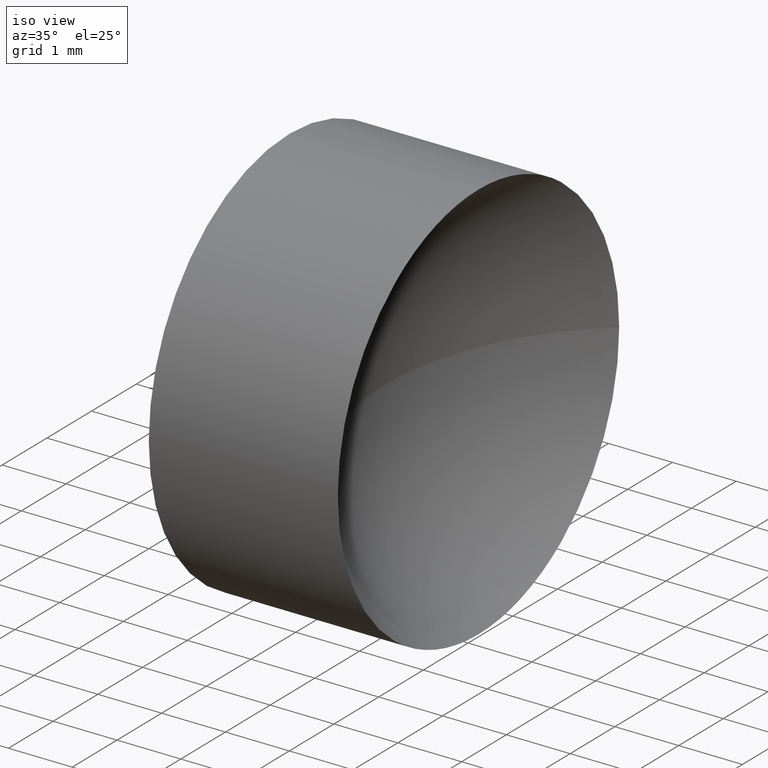
[diagram: clean part render]
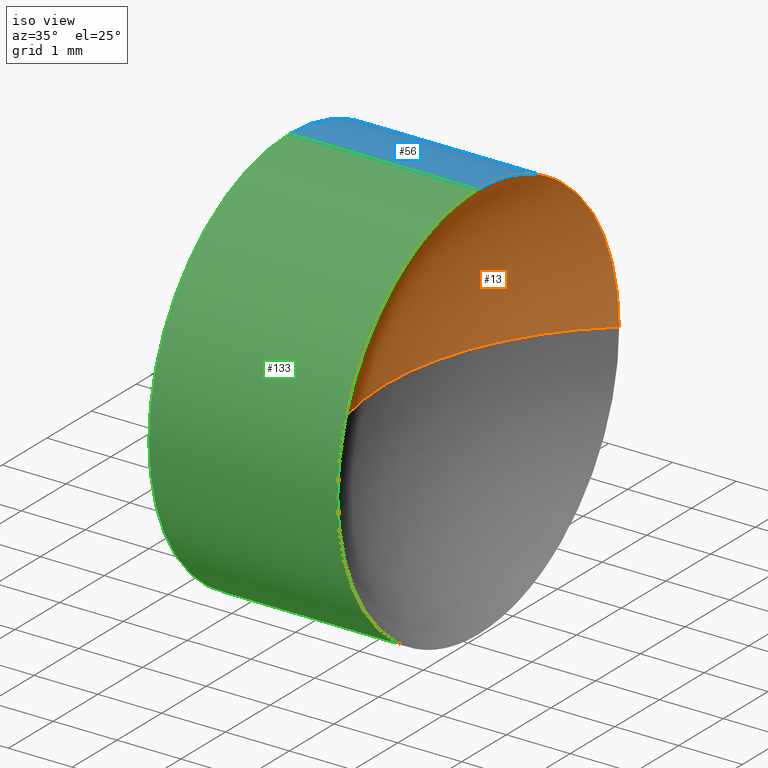
[diagram: same view with three faces highlighted in distinct colors, each labeled with its STEP entity id]
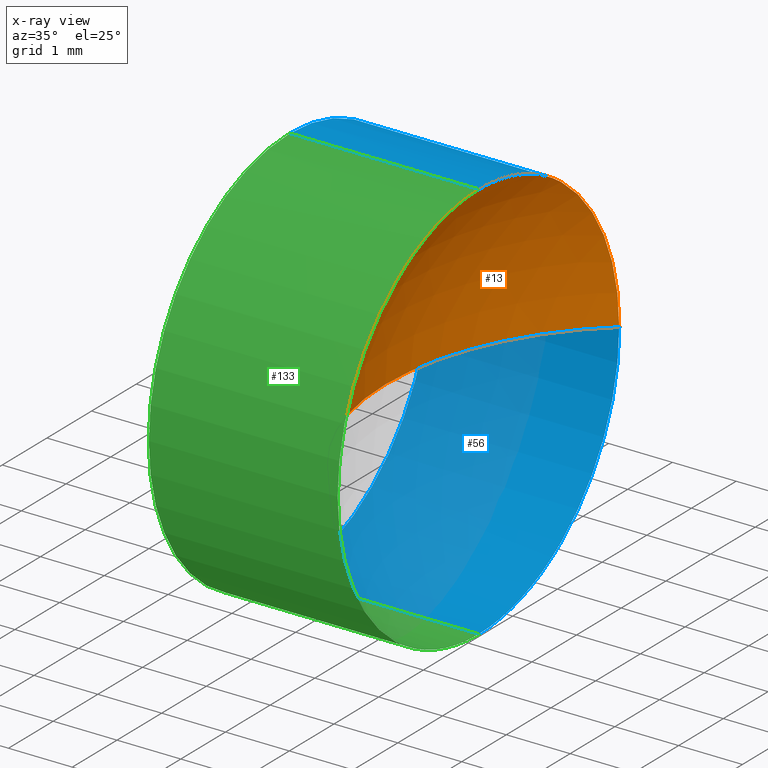
[diagram: x-ray of the same camera — body ghosted, the three highlighted faces saturated]
A machine part, iso view with three faces highlighted in distinct colors.
The next image is the same camera in x-ray (body ghosted, the three faces saturated) — at least one of them is partly hidden behind the body in this view.
Their STEP definitions:

[orange] entity #13 — the highlighted spherical surface has radius 4.1281 mm.
#12 = FACE_OUTER_BOUND ( 'NONE', #64, .T. ) ;
#13 = ADVANCED_FACE ( 'NONE', ( #12 ), #118, .F. ) ;
#14 = DIRECTION ( 'NONE',  ( 0.0000000000000000000, -1.000000000000000000, -1.224646799147353000E-016 ) ) ;
#24 = CIRCLE ( 'NONE', #79, 3.150000000000001700 ) ;
#25 = DIRECTION ( 'NONE',  ( 0.0000000000000000000, 0.0000000000000000000, -1.000000000000000000 ) ) ;
#26 = CARTESIAN_POINT ( 'NONE',  ( 27.80030591355844600, 13.04452057459747900, 0.0000000000000000000 ) ) ;
#30 = CARTESIAN_POINT ( 'NONE',  ( 25.13218947520227800, 13.04452057459747900, 0.0000000000000000000 ) ) ;
#31 = DIRECTION ( 'NONE',  ( 0.0000000000000000000, 0.0000000000000000000, 1.000000000000000000 ) ) ;
#33 = ORIENTED_EDGE ( 'NONE', *, *, #53, .F. ) ;
#36 = CIRCLE ( 'NONE', #89, 3.150000000000001700 ) ;
#43 = DIRECTION ( 'NONE',  ( -1.000000000000000000, 0.0000000000000000000, 0.0000000000000000000 ) ) ;
#44 = DIRECTION ( 'NONE',  ( 0.0000000000000000000, 0.0000000000000000000, 1.000000000000000000 ) ) ;
#47 = VERTEX_POINT ( 'NONE', #69 ) ;
#53 = EDGE_CURVE ( 'NONE', #130, #55, #179, .T. ) ;
#55 = VERTEX_POINT ( 'NONE', #138 ) ;
#59 = DIRECTION ( 'NONE',  ( 0.0000000000000000000, 0.0000000000000000000, 1.000000000000000000 ) ) ;
#63 = DIRECTION ( 'NONE',  ( -1.000000000000000000, -0.0000000000000000000, -0.0000000000000000000 ) ) ;
#64 = EDGE_LOOP ( 'NONE', ( #33, #81, #149, #161 ) ) ;
#66 = EDGE_CURVE ( 'NONE', #47, #55, #162, .T. ) ;
#69 = CARTESIAN_POINT ( 'NONE',  ( 25.13218947520227800, 9.894520574597477100, 0.0000000000000000000 ) ) ;
#70 = DIRECTION ( 'NONE',  ( 0.0000000000000000000, -1.224646799147353200E-016, 1.000000000000000000 ) ) ;
#73 = CARTESIAN_POINT ( 'NONE',  ( 25.13218947520227800, 13.04452057459747900, 3.150000000000001700 ) ) ;
#79 = AXIS2_PLACEMENT_3D ( 'NONE', #143, #101, #59 ) ;
#81 = ORIENTED_EDGE ( 'NONE', *, *, #128, .F. ) ;
#86 = CARTESIAN_POINT ( 'NONE',  ( 27.80030591355844600, 13.04452057459747900, 0.0000000000000000000 ) ) ;
#89 = AXIS2_PLACEMENT_3D ( 'NONE', #30, #63, #31 ) ;
#101 = DIRECTION ( 'NONE',  ( -1.000000000000000000, -0.0000000000000000000, -0.0000000000000000000 ) ) ;
#109 = CARTESIAN_POINT ( 'NONE',  ( 27.80030591355844600, 13.04452057459747900, 0.0000000000000000000 ) ) ;
#111 = AXIS2_PLACEMENT_3D ( 'NONE', #86, #44, #166 ) ;
#118 = SPHERICAL_SURFACE ( 'NONE', #111, 4.128116438356165900 ) ;
#123 = CARTESIAN_POINT ( 'NONE',  ( 25.13218947520227800, 16.19452057459748000, 3.857637417314164200E-016 ) ) ;
#128 = EDGE_CURVE ( 'NONE', #159, #130, #24, .T. ) ;
#130 = VERTEX_POINT ( 'NONE', #123 ) ;
#138 = CARTESIAN_POINT ( 'NONE',  ( 23.67218947520228100, 13.04452057459747900, 0.0000000000000000000 ) ) ;
#142 = AXIS2_PLACEMENT_3D ( 'NONE', #26, #70, #14 ) ;
#143 = CARTESIAN_POINT ( 'NONE',  ( 25.13218947520227800, 13.04452057459747900, 0.0000000000000000000 ) ) ;
#147 = EDGE_CURVE ( 'NONE', #47, #159, #36, .T. ) ;
#149 = ORIENTED_EDGE ( 'NONE', *, *, #147, .F. ) ;
#159 = VERTEX_POINT ( 'NONE', #73 ) ;
#161 = ORIENTED_EDGE ( 'NONE', *, *, #66, .T. ) ;
#162 = CIRCLE ( 'NONE', #165, 4.128116438356165000 ) ;
#165 = AXIS2_PLACEMENT_3D ( 'NONE', #109, #25, #43 ) ;
#166 = DIRECTION ( 'NONE',  ( 0.0000000000000000000, -1.000000000000000000, 0.0000000000000000000 ) ) ;
#179 = CIRCLE ( 'NONE', #142, 4.128116438356166800 ) ;

[blue] entity #56 — the highlighted cylindrical surface (partial cylindrical patch) has radius 3.15 mm, axis along (-1, -0, -0).
#2 = LINE ( 'NONE', #27, #182 ) ;
#17 = CARTESIAN_POINT ( 'NONE',  ( 25.13218947520227800, 13.04452057459747900, -3.150000000000001700 ) ) ;
#21 = FACE_OUTER_BOUND ( 'NONE', #39, .T. ) ;
#24 = CIRCLE ( 'NONE', #79, 3.150000000000001700 ) ;
#27 = CARTESIAN_POINT ( 'NONE',  ( 21.24768693344483200, 13.04452057459747900, -3.150000000000001700 ) ) ;
#28 = DIRECTION ( 'NONE',  ( 0.0000000000000000000, 0.0000000000000000000, 1.000000000000000000 ) ) ;
#37 = ORIENTED_EDGE ( 'NONE', *, *, #75, .T. ) ;
#39 = EDGE_LOOP ( 'NONE', ( #37, #153, #112, #51, #177 ) ) ;
#45 = DIRECTION ( 'NONE',  ( -1.000000000000000000, -0.0000000000000000000, -0.0000000000000000000 ) ) ;
#51 = ORIENTED_EDGE ( 'NONE', *, *, #83, .F. ) ;
#56 = ADVANCED_FACE ( 'NONE', ( #21 ), #127, .T. ) ;
#58 = EDGE_CURVE ( 'NONE', #97, #144, #2, .T. ) ;
#59 = DIRECTION ( 'NONE',  ( 0.0000000000000000000, 0.0000000000000000000, 1.000000000000000000 ) ) ;
#61 = CARTESIAN_POINT ( 'NONE',  ( 25.13218947520227800, 13.04452057459747900, 0.0000000000000000000 ) ) ;
#65 = LINE ( 'NONE', #74, #72 ) ;
#68 = EDGE_CURVE ( 'NONE', #77, #144, #100, .T. ) ;
#72 = VECTOR ( 'NONE', #105, 1000.000000000000000 ) ;
#73 = CARTESIAN_POINT ( 'NONE',  ( 25.13218947520227800, 13.04452057459747900, 3.150000000000001700 ) ) ;
#74 = CARTESIAN_POINT ( 'NONE',  ( 21.24768693344483200, 13.04452057459747900, 3.150000000000001700 ) ) ;
#75 = EDGE_CURVE ( 'NONE', #130, #97, #95, .T. ) ;
#77 = VERTEX_POINT ( 'NONE', #99 ) ;
#79 = AXIS2_PLACEMENT_3D ( 'NONE', #143, #101, #59 ) ;
#83 = EDGE_CURVE ( 'NONE', #159, #77, #65, .T. ) ;
#92 = DIRECTION ( 'NONE',  ( -1.000000000000000000, -0.0000000000000000000, -0.0000000000000000000 ) ) ;
#95 = CIRCLE ( 'NONE', #180, 3.150000000000001700 ) ;
#96 = DIRECTION ( 'NONE',  ( -1.000000000000000000, -0.0000000000000000000, -0.0000000000000000000 ) ) ;
#97 = VERTEX_POINT ( 'NONE', #17 ) ;
#99 = CARTESIAN_POINT ( 'NONE',  ( 22.17218947520228100, 13.04452057459747900, 3.150000000000001700 ) ) ;
#100 = CIRCLE ( 'NONE', #103, 3.150000000000001700 ) ;
#101 = DIRECTION ( 'NONE',  ( -1.000000000000000000, -0.0000000000000000000, -0.0000000000000000000 ) ) ;
#103 = AXIS2_PLACEMENT_3D ( 'NONE', #135, #45, #28 ) ;
#105 = DIRECTION ( 'NONE',  ( -1.000000000000000000, -0.0000000000000000000, -0.0000000000000000000 ) ) ;
#107 = AXIS2_PLACEMENT_3D ( 'NONE', #170, #96, #154 ) ;
#112 = ORIENTED_EDGE ( 'NONE', *, *, #68, .F. ) ;
#123 = CARTESIAN_POINT ( 'NONE',  ( 25.13218947520227800, 16.19452057459748000, 3.857637417314164200E-016 ) ) ;
#127 = CYLINDRICAL_SURFACE ( 'NONE', #107, 3.150000000000001700 ) ;
#128 = EDGE_CURVE ( 'NONE', #159, #130, #24, .T. ) ;
#130 = VERTEX_POINT ( 'NONE', #123 ) ;
#134 = DIRECTION ( 'NONE',  ( -1.000000000000000000, -0.0000000000000000000, -0.0000000000000000000 ) ) ;
#135 = CARTESIAN_POINT ( 'NONE',  ( 22.17218947520228100, 13.04452057459747900, 0.0000000000000000000 ) ) ;
#141 = DIRECTION ( 'NONE',  ( 0.0000000000000000000, 0.0000000000000000000, 1.000000000000000000 ) ) ;
#143 = CARTESIAN_POINT ( 'NONE',  ( 25.13218947520227800, 13.04452057459747900, 0.0000000000000000000 ) ) ;
#144 = VERTEX_POINT ( 'NONE', #158 ) ;
#153 = ORIENTED_EDGE ( 'NONE', *, *, #58, .T. ) ;
#154 = DIRECTION ( 'NONE',  ( 0.0000000000000000000, 0.0000000000000000000, 1.000000000000000000 ) ) ;
#158 = CARTESIAN_POINT ( 'NONE',  ( 22.17218947520228100, 13.04452057459747900, -3.150000000000001700 ) ) ;
#159 = VERTEX_POINT ( 'NONE', #73 ) ;
#170 = CARTESIAN_POINT ( 'NONE',  ( 21.24768693344483200, 13.04452057459747900, 0.0000000000000000000 ) ) ;
#177 = ORIENTED_EDGE ( 'NONE', *, *, #128, .T. ) ;
#180 = AXIS2_PLACEMENT_3D ( 'NONE', #61, #92, #141 ) ;
#182 = VECTOR ( 'NONE', #134, 1000.000000000000000 ) ;

[green] entity #133 — the highlighted cylindrical surface (partial cylindrical patch) has radius 3.15 mm, axis along (-1, -0, -0).
#2 = LINE ( 'NONE', #27, #182 ) ;
#3 = CARTESIAN_POINT ( 'NONE',  ( 25.13218947520227800, 13.04452057459747900, 0.0000000000000000000 ) ) ;
#17 = CARTESIAN_POINT ( 'NONE',  ( 25.13218947520227800, 13.04452057459747900, -3.150000000000001700 ) ) ;
#20 = ORIENTED_EDGE ( 'NONE', *, *, #58, .F. ) ;
#27 = CARTESIAN_POINT ( 'NONE',  ( 21.24768693344483200, 13.04452057459747900, -3.150000000000001700 ) ) ;
#30 = CARTESIAN_POINT ( 'NONE',  ( 25.13218947520227800, 13.04452057459747900, 0.0000000000000000000 ) ) ;
#31 = DIRECTION ( 'NONE',  ( 0.0000000000000000000, 0.0000000000000000000, 1.000000000000000000 ) ) ;
#35 = FACE_OUTER_BOUND ( 'NONE', #148, .T. ) ;
#36 = CIRCLE ( 'NONE', #89, 3.150000000000001700 ) ;
#41 = AXIS2_PLACEMENT_3D ( 'NONE', #173, #50, #90 ) ;
#42 = ORIENTED_EDGE ( 'NONE', *, *, #167, .F. ) ;
#47 = VERTEX_POINT ( 'NONE', #69 ) ;
#50 = DIRECTION ( 'NONE',  ( -1.000000000000000000, -0.0000000000000000000, -0.0000000000000000000 ) ) ;
#54 = ORIENTED_EDGE ( 'NONE', *, *, #83, .T. ) ;
#58 = EDGE_CURVE ( 'NONE', #97, #144, #2, .T. ) ;
#60 = CYLINDRICAL_SURFACE ( 'NONE', #114, 3.150000000000001700 ) ;
#62 = DIRECTION ( 'NONE',  ( 0.0000000000000000000, 0.0000000000000000000, 1.000000000000000000 ) ) ;
#63 = DIRECTION ( 'NONE',  ( -1.000000000000000000, -0.0000000000000000000, -0.0000000000000000000 ) ) ;
#65 = LINE ( 'NONE', #74, #72 ) ;
#69 = CARTESIAN_POINT ( 'NONE',  ( 25.13218947520227800, 9.894520574597477100, 0.0000000000000000000 ) ) ;
#72 = VECTOR ( 'NONE', #105, 1000.000000000000000 ) ;
#73 = CARTESIAN_POINT ( 'NONE',  ( 25.13218947520227800, 13.04452057459747900, 3.150000000000001700 ) ) ;
#74 = CARTESIAN_POINT ( 'NONE',  ( 21.24768693344483200, 13.04452057459747900, 3.150000000000001700 ) ) ;
#77 = VERTEX_POINT ( 'NONE', #99 ) ;
#82 = ORIENTED_EDGE ( 'NONE', *, *, #147, .T. ) ;
#83 = EDGE_CURVE ( 'NONE', #159, #77, #65, .T. ) ;
#84 = CARTESIAN_POINT ( 'NONE',  ( 21.24768693344483200, 13.04452057459747900, 0.0000000000000000000 ) ) ;
#89 = AXIS2_PLACEMENT_3D ( 'NONE', #30, #63, #31 ) ;
#90 = DIRECTION ( 'NONE',  ( 0.0000000000000000000, 0.0000000000000000000, 1.000000000000000000 ) ) ;
#93 = ORIENTED_EDGE ( 'NONE', *, *, #183, .T. ) ;
#97 = VERTEX_POINT ( 'NONE', #17 ) ;
#99 = CARTESIAN_POINT ( 'NONE',  ( 22.17218947520228100, 13.04452057459747900, 3.150000000000001700 ) ) ;
#105 = DIRECTION ( 'NONE',  ( -1.000000000000000000, -0.0000000000000000000, -0.0000000000000000000 ) ) ;
#114 = AXIS2_PLACEMENT_3D ( 'NONE', #84, #184, #145 ) ;
#120 = AXIS2_PLACEMENT_3D ( 'NONE', #3, #122, #62 ) ;
#122 = DIRECTION ( 'NONE',  ( -1.000000000000000000, -0.0000000000000000000, -0.0000000000000000000 ) ) ;
#132 = CIRCLE ( 'NONE', #41, 3.150000000000001700 ) ;
#133 = ADVANCED_FACE ( 'NONE', ( #35 ), #60, .T. ) ;
#134 = DIRECTION ( 'NONE',  ( -1.000000000000000000, -0.0000000000000000000, -0.0000000000000000000 ) ) ;
#144 = VERTEX_POINT ( 'NONE', #158 ) ;
#145 = DIRECTION ( 'NONE',  ( 0.0000000000000000000, 0.0000000000000000000, 1.000000000000000000 ) ) ;
#147 = EDGE_CURVE ( 'NONE', #47, #159, #36, .T. ) ;
#148 = EDGE_LOOP ( 'NONE', ( #20, #93, #82, #54, #42 ) ) ;
#158 = CARTESIAN_POINT ( 'NONE',  ( 22.17218947520228100, 13.04452057459747900, -3.150000000000001700 ) ) ;
#159 = VERTEX_POINT ( 'NONE', #73 ) ;
#167 = EDGE_CURVE ( 'NONE', #144, #77, #132, .T. ) ;
#172 = CIRCLE ( 'NONE', #120, 3.150000000000001700 ) ;
#173 = CARTESIAN_POINT ( 'NONE',  ( 22.17218947520228100, 13.04452057459747900, 0.0000000000000000000 ) ) ;
#182 = VECTOR ( 'NONE', #134, 1000.000000000000000 ) ;
#183 = EDGE_CURVE ( 'NONE', #97, #47, #172, .T. ) ;
#184 = DIRECTION ( 'NONE',  ( -1.000000000000000000, -0.0000000000000000000, -0.0000000000000000000 ) ) ;